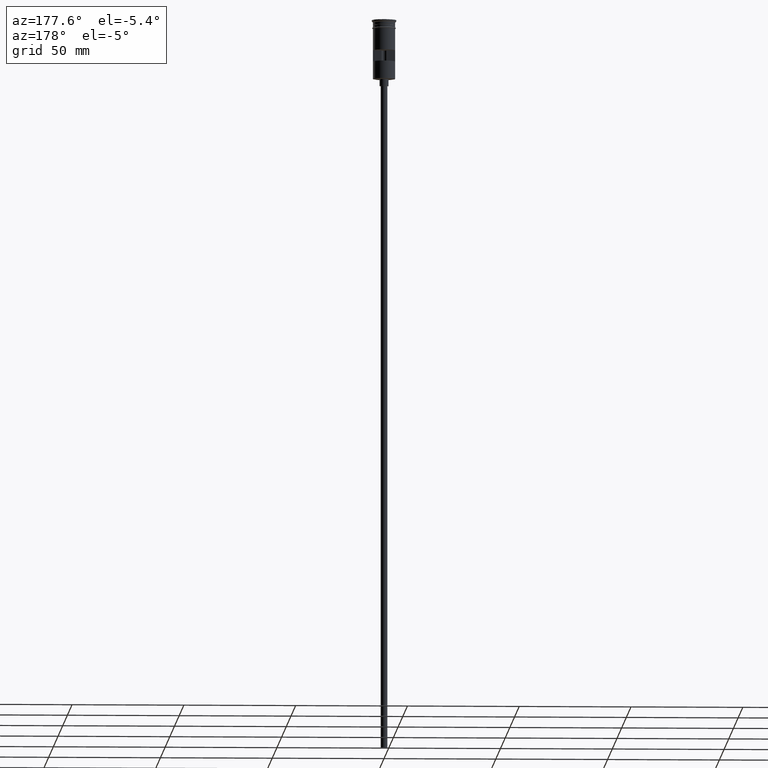
[diagram: clean part render]
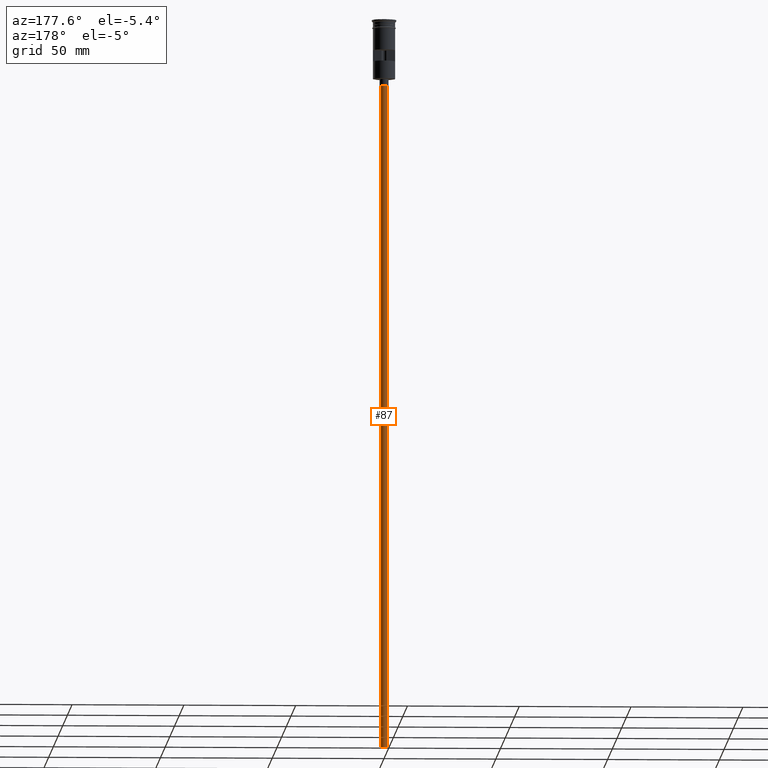
[diagram: same view with one face highlighted and labeled with its STEP entity id]
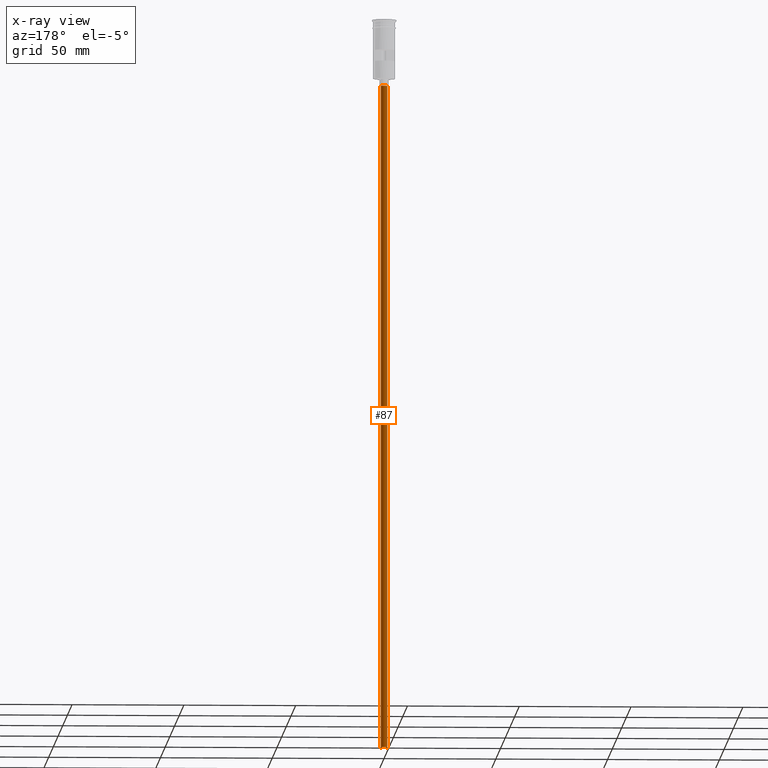
[diagram: x-ray of the same camera — body ghosted, the highlighted face saturated]
A machine part, auxiliary view. The second image highlights one B-rep face of the part: STEP entity #87.
The next image is the same camera in x-ray: the body ghosted, the highlighted face saturated — about 0% of this face is hidden behind the body in this view.
In plain terms, the highlighted cylindrical surface (edge-blend (fillet) strip) has radius 1.5 mm, axis along (-0, -0, 1).
Its self-contained STEP definition (entity closure, byte-faithful):
#28 = DIRECTION ( 'NONE',  ( 1.000000000000000000, 0.000000000000000000, 0.000000000000000000 ) ) ;
#87 = ADVANCED_FACE ( 'NONE', ( #274 ), #1259, .T. ) ;
#113 = VERTEX_POINT ( 'NONE', #858 ) ;
#198 = DIRECTION ( 'NONE',  ( -1.000000000000000000, 0.000000000000000000, 0.000000000000000000 ) ) ;
#274 = FACE_OUTER_BOUND ( 'NONE', #1496, .T. ) ;
#275 = DIRECTION ( 'NONE',  ( -0.000000000000000000, -0.000000000000000000, 1.000000000000000000 ) ) ;
#295 = ORIENTED_EDGE ( 'NONE', *, *, #1379, .T. ) ;
#340 = CARTESIAN_POINT ( 'NONE',  ( 0.000000000000000000, 0.000000000000000000, -326.5000000000000000 ) ) ;
#359 = VERTEX_POINT ( 'NONE', #1237 ) ;
#417 = CARTESIAN_POINT ( 'NONE',  ( 1.500000000000000222, 0.000000000000000000, -326.5000000000000000 ) ) ;
#452 = VECTOR ( 'NONE', #1123, 1000.000000000000000 ) ;
#564 = DIRECTION ( 'NONE',  ( -1.000000000000000000, 0.000000000000000000, 0.000000000000000000 ) ) ;
#675 = ORIENTED_EDGE ( 'NONE', *, *, #1309, .F. ) ;
#704 = EDGE_CURVE ( 'NONE', #1133, #359, #733, .T. ) ;
#733 = LINE ( 'NONE', #752, #1149 ) ;
#752 = CARTESIAN_POINT ( 'NONE',  ( -1.500000000000000222, 1.836970198721030181E-16, -326.5000000000000000 ) ) ;
#771 = CARTESIAN_POINT ( 'NONE',  ( 0.000000000000000000, 0.000000000000000000, -326.5000000000000000 ) ) ;
#774 = AXIS2_PLACEMENT_3D ( 'NONE', #815, #1302, #198 ) ;
#815 = CARTESIAN_POINT ( 'NONE',  ( 0.000000000000000000, 0.000000000000000000, -29.50000000000000000 ) ) ;
#858 = CARTESIAN_POINT ( 'NONE',  ( 1.500000000000000222, 0.000000000000000000, -29.50000000000000000 ) ) ;
#922 = CARTESIAN_POINT ( 'NONE',  ( 1.500000000000000222, 0.000000000000000000, -326.5000000000000000 ) ) ;
#923 = ORIENTED_EDGE ( 'NONE', *, *, #704, .T. ) ;
#1102 = AXIS2_PLACEMENT_3D ( 'NONE', #340, #1312, #564 ) ;
#1118 = DIRECTION ( 'NONE',  ( -0.000000000000000000, -0.000000000000000000, 1.000000000000000000 ) ) ;
#1123 = DIRECTION ( 'NONE',  ( -0.000000000000000000, -0.000000000000000000, 1.000000000000000000 ) ) ;
#1127 = VERTEX_POINT ( 'NONE', #922 ) ;
#1133 = VERTEX_POINT ( 'NONE', #1419 ) ;
#1149 = VECTOR ( 'NONE', #275, 1000.000000000000000 ) ;
#1218 = LINE ( 'NONE', #417, #452 ) ;
#1237 = CARTESIAN_POINT ( 'NONE',  ( -1.500000000000000222, 1.836970198721030181E-16, -29.50000000000000000 ) ) ;
#1259 = CYLINDRICAL_SURFACE ( 'NONE', #1488, 1.500000000000000222 ) ;
#1286 = CIRCLE ( 'NONE', #774, 1.500000000000000222 ) ;
#1302 = DIRECTION ( 'NONE',  ( 0.000000000000000000, 0.000000000000000000, -1.000000000000000000 ) ) ;
#1309 = EDGE_CURVE ( 'NONE', #1133, #1127, #1415, .T. ) ;
#1312 = DIRECTION ( 'NONE',  ( 0.000000000000000000, 0.000000000000000000, -1.000000000000000000 ) ) ;
#1379 = EDGE_CURVE ( 'NONE', #359, #113, #1286, .T. ) ;
#1415 = CIRCLE ( 'NONE', #1102, 1.500000000000000222 ) ;
#1419 = CARTESIAN_POINT ( 'NONE',  ( -1.500000000000000222, 1.836970198721030181E-16, -326.5000000000000000 ) ) ;
#1477 = EDGE_CURVE ( 'NONE', #1127, #113, #1218, .T. ) ;
#1482 = ORIENTED_EDGE ( 'NONE', *, *, #1477, .F. ) ;
#1488 = AXIS2_PLACEMENT_3D ( 'NONE', #771, #1118, #28 ) ;
#1496 = EDGE_LOOP ( 'NONE', ( #675, #923, #295, #1482 ) ) ;